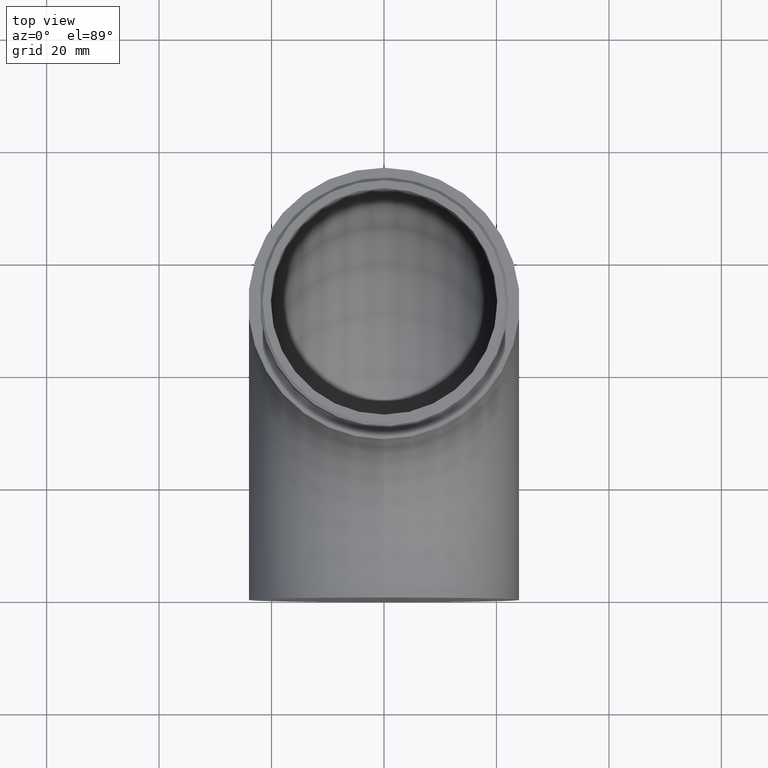
[diagram: clean part render]
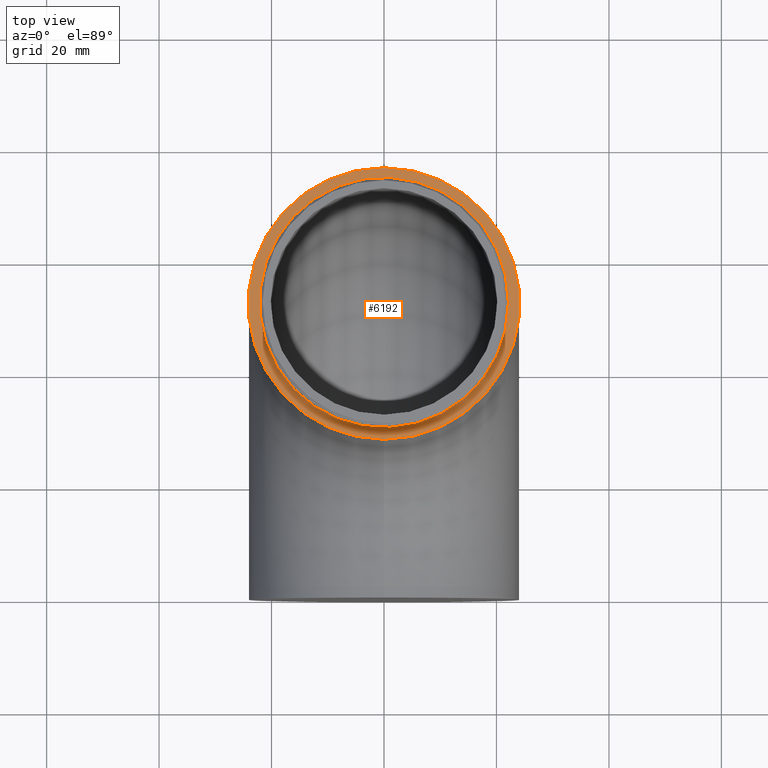
[diagram: same view with one face highlighted and labeled with its STEP entity id]
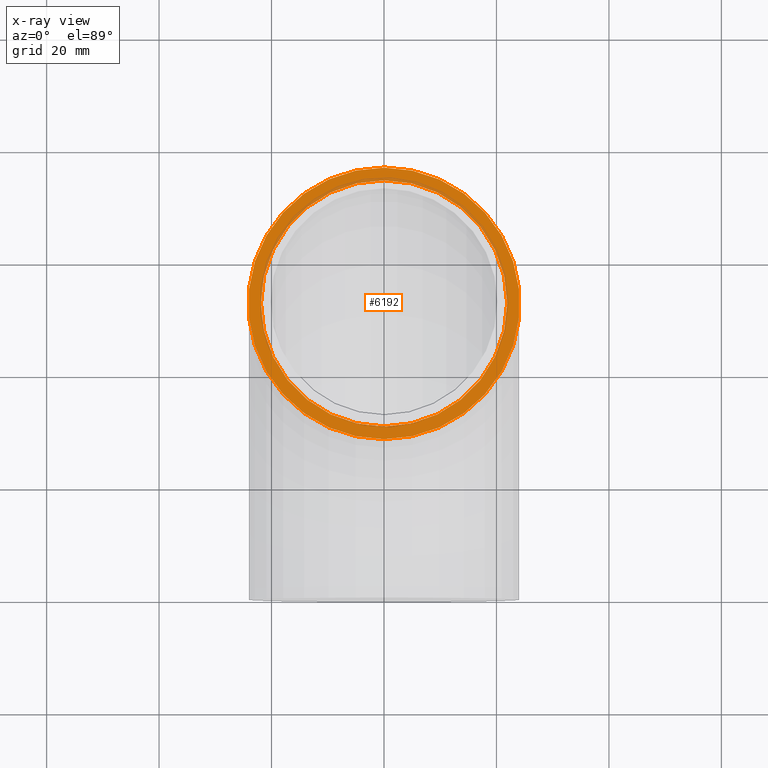
[diagram: x-ray of the same camera — body ghosted, the highlighted face saturated]
A machine part, top view. The second image highlights one B-rep face of the part: STEP entity #6192.
The next image is the same camera in x-ray: the body ghosted, the highlighted face saturated — about 10% of this face is hidden behind the body in this view.
In plain terms, the highlighted planar face has unit normal (0, -0, 1).
Its self-contained STEP definition (entity closure, byte-faithful):
#378 = PLANE ( 'NONE',  #11943 ) ;
#488 = FACE_BOUND ( 'NONE', #9788, .T. ) ;
#2221 = AXIS2_PLACEMENT_3D ( 'NONE', #2364, #7158, #9226 ) ;
#2364 = CARTESIAN_POINT ( 'NONE',  ( 0.0000000000000000000, 51.85000000000000100, 49.85000000000001600 ) ) ;
#2937 = CIRCLE ( 'NONE', #2221, 24.15000000000000600 ) ;
#3180 = DIRECTION ( 'NONE',  ( 0.0000000000000000000, -1.608122649676636600E-016, 1.000000000000000000 ) ) ;
#3208 = CARTESIAN_POINT ( 'NONE',  ( 0.0000000000000000000, 51.85000000000000100, 49.85000000000000900 ) ) ;
#3925 = CARTESIAN_POINT ( 'NONE',  ( 0.0000000000000000000, 27.69999999999999600, 49.85000000000000900 ) ) ;
#4188 = DIRECTION ( 'NONE',  ( 1.000000000000000000, 0.0000000000000000000, 0.0000000000000000000 ) ) ;
#4309 = CIRCLE ( 'NONE', #7944, 21.89999999999999900 ) ;
#4466 = FACE_OUTER_BOUND ( 'NONE', #9936, .T. ) ;
#5222 = DIRECTION ( 'NONE',  ( 0.0000000000000000000, 0.0000000000000000000, 1.000000000000000000 ) ) ;
#5924 = CARTESIAN_POINT ( 'NONE',  ( 21.89999999999999900, 51.85000000000000100, 49.85000000000000900 ) ) ;
#6072 = DIRECTION ( 'NONE',  ( 0.0000000000000000000, -1.000000000000000000, -1.608122649676636600E-016 ) ) ;
#6192 = ADVANCED_FACE ( 'NONE', ( #4466, #488 ), #378, .T. ) ;
#7130 = EDGE_CURVE ( 'NONE', #10582, #10582, #4309, .T. ) ;
#7158 = DIRECTION ( 'NONE',  ( 0.0000000000000000000, -1.608122649676636600E-016, 1.000000000000000000 ) ) ;
#7573 = ORIENTED_EDGE ( 'NONE', *, *, #12624, .T. ) ;
#7944 = AXIS2_PLACEMENT_3D ( 'NONE', #3208, #5222, #4188 ) ;
#8599 = VERTEX_POINT ( 'NONE', #3925 ) ;
#9164 = ORIENTED_EDGE ( 'NONE', *, *, #7130, .F. ) ;
#9226 = DIRECTION ( 'NONE',  ( 0.0000000000000000000, -1.000000000000000000, -2.873247993336325500E-016 ) ) ;
#9788 = EDGE_LOOP ( 'NONE', ( #9164 ) ) ;
#9936 = EDGE_LOOP ( 'NONE', ( #7573 ) ) ;
#10582 = VERTEX_POINT ( 'NONE', #5924 ) ;
#11032 = CARTESIAN_POINT ( 'NONE',  ( 0.0000000000000000000, 51.85000000000000100, 49.85000000000001600 ) ) ;
#11943 = AXIS2_PLACEMENT_3D ( 'NONE', #11032, #3180, #6072 ) ;
#12624 = EDGE_CURVE ( 'NONE', #8599, #8599, #2937, .T. ) ;